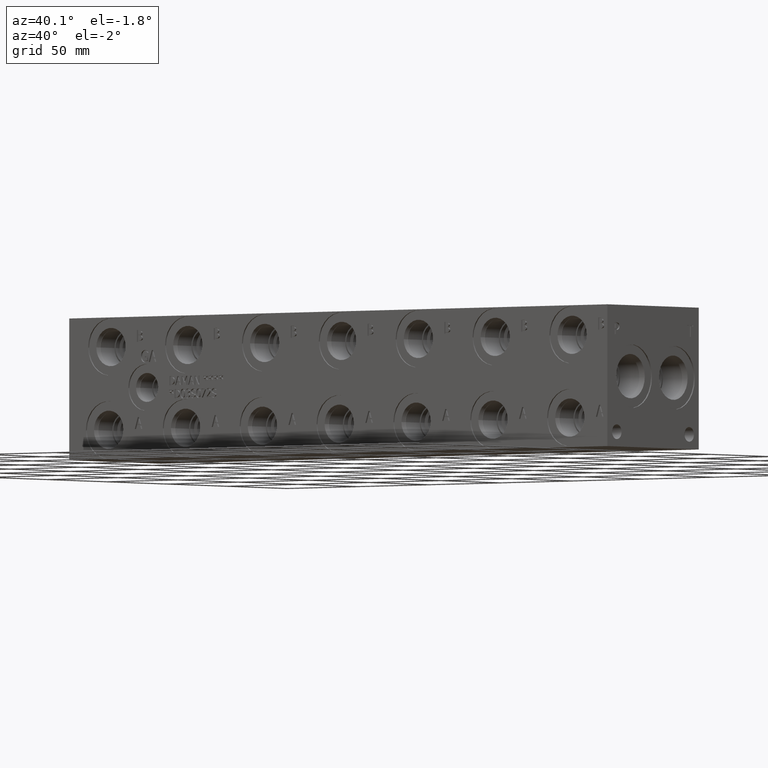
[diagram: clean part render]
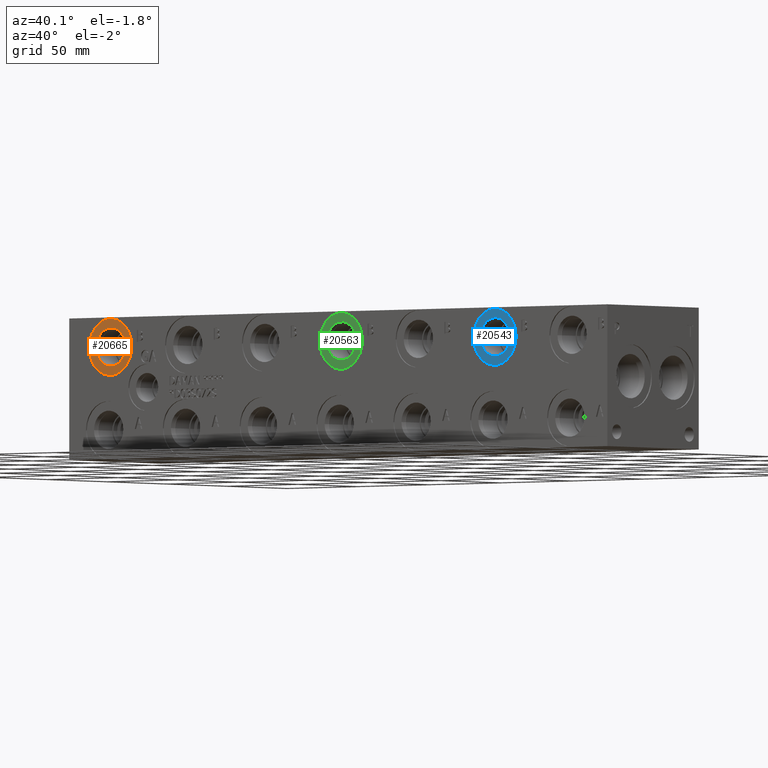
[diagram: same view with three faces highlighted in distinct colors, each labeled with its STEP entity id]
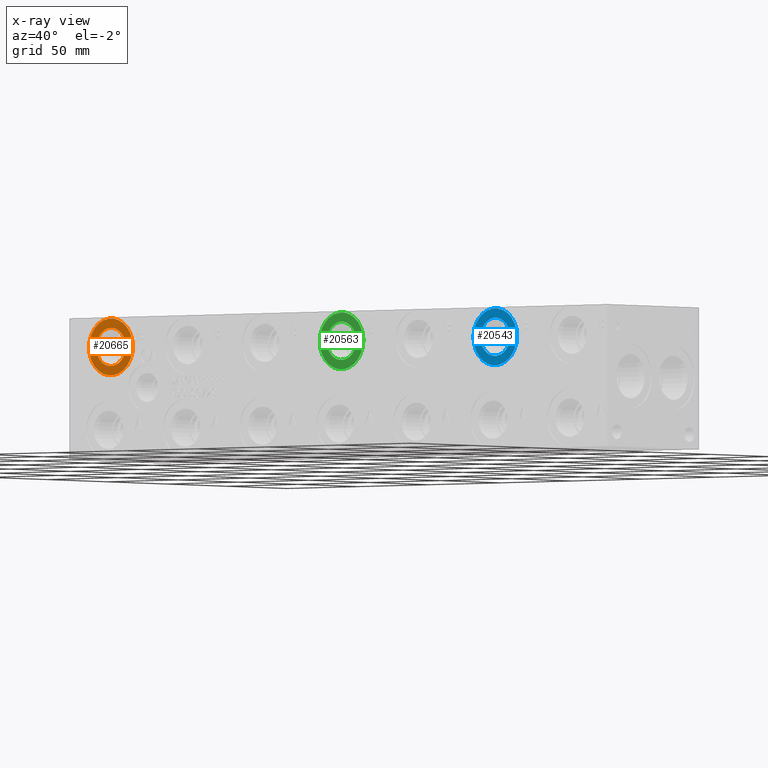
[diagram: x-ray of the same camera — body ghosted, the three highlighted faces saturated]
A machine part, auxiliary view with three faces highlighted in distinct colors.
The next image is the same camera in x-ray (body ghosted, the three faces saturated) — at least one of them is partly hidden behind the body in this view.
Their STEP definitions:

[orange] entity #20665 — the highlighted planar face has unit normal (0, 1, 0).
#943=CIRCLE('',#22125,15.3162);
#944=CIRCLE('',#22126,15.3162);
#945=CIRCLE('',#22128,10.2997);
#946=CIRCLE('',#22129,10.2997);
#1229=FACE_BOUND('',#4220,.T.);
#2986=FACE_OUTER_BOUND('',#4219,.T.);
#4219=EDGE_LOOP('',(#17901,#17902));
#4220=EDGE_LOOP('',(#17903,#17904));
#9687=VERTEX_POINT('',#35775);
#9688=VERTEX_POINT('',#35777);
#9689=VERTEX_POINT('',#35781);
#9690=VERTEX_POINT('',#35782);
#12509=EDGE_CURVE('',#9687,#9688,#943,.T.);
#12510=EDGE_CURVE('',#9688,#9687,#944,.T.);
#12511=EDGE_CURVE('',#9689,#9690,#945,.T.);
#12512=EDGE_CURVE('',#9690,#9689,#946,.T.);
#17901=ORIENTED_EDGE('',*,*,#12510,.F.);
#17902=ORIENTED_EDGE('',*,*,#12509,.F.);
#17903=ORIENTED_EDGE('',*,*,#12511,.T.);
#17904=ORIENTED_EDGE('',*,*,#12512,.T.);
#19013=PLANE('',#22127);
#20665=ADVANCED_FACE('',(#2986,#1229),#19013,.F.);
#22125=AXIS2_PLACEMENT_3D('',#35778,#26680,#26681);
#22126=AXIS2_PLACEMENT_3D('',#35779,#26682,#26683);
#22127=AXIS2_PLACEMENT_3D('',#35780,#26684,#26685);
#22128=AXIS2_PLACEMENT_3D('',#35783,#26686,#26687);
#22129=AXIS2_PLACEMENT_3D('',#35784,#26688,#26689);
#26680=DIRECTION('center_axis',(0.,1.,0.));
#26681=DIRECTION('ref_axis',(1.,0.,0.));
#26682=DIRECTION('center_axis',(0.,1.,0.));
#26683=DIRECTION('ref_axis',(1.,0.,0.));
#26684=DIRECTION('center_axis',(0.,1.,0.));
#26685=DIRECTION('ref_axis',(0.,0.,1.));
#26686=DIRECTION('center_axis',(0.,1.,0.));
#26687=DIRECTION('ref_axis',(1.,0.,0.));
#26688=DIRECTION('center_axis',(0.,1.,0.));
#26689=DIRECTION('ref_axis',(1.,0.,0.));
#35775=CARTESIAN_POINT('',(13.2588,0.7874,60.325));
#35777=CARTESIAN_POINT('',(43.8912,0.7874,60.325));
#35778=CARTESIAN_POINT('Origin',(28.575,0.7874,60.325));
#35779=CARTESIAN_POINT('Origin',(28.575,0.7874,60.325));
#35780=CARTESIAN_POINT('Origin',(38.8747,0.7874,60.325));
#35781=CARTESIAN_POINT('',(38.8747,0.7874,60.325));
#35782=CARTESIAN_POINT('',(18.2753,0.787399999999999,60.325));
#35783=CARTESIAN_POINT('Origin',(28.575,0.7874,60.325));
#35784=CARTESIAN_POINT('Origin',(28.575,0.7874,60.325));

[blue] entity #20543 — the highlighted planar face has unit normal (0, 1, 0).
#757=CIRCLE('',#21817,15.3162);
#758=CIRCLE('',#21818,15.3162);
#759=CIRCLE('',#21820,10.2997);
#760=CIRCLE('',#21821,10.2997);
#1207=FACE_BOUND('',#4076,.T.);
#2864=FACE_OUTER_BOUND('',#4075,.T.);
#4075=EDGE_LOOP('',(#17307,#17308));
#4076=EDGE_LOOP('',(#17309,#17310));
#9489=VERTEX_POINT('',#35169);
#9490=VERTEX_POINT('',#35171);
#9491=VERTEX_POINT('',#35175);
#9492=VERTEX_POINT('',#35176);
#12223=EDGE_CURVE('',#9489,#9490,#757,.T.);
#12224=EDGE_CURVE('',#9490,#9489,#758,.T.);
#12225=EDGE_CURVE('',#9491,#9492,#759,.T.);
#12226=EDGE_CURVE('',#9492,#9491,#760,.T.);
#17307=ORIENTED_EDGE('',*,*,#12224,.F.);
#17308=ORIENTED_EDGE('',*,*,#12223,.F.);
#17309=ORIENTED_EDGE('',*,*,#12225,.T.);
#17310=ORIENTED_EDGE('',*,*,#12226,.T.);
#18991=PLANE('',#21819);
#20543=ADVANCED_FACE('',(#2864,#1207),#18991,.F.);
#21817=AXIS2_PLACEMENT_3D('',#35172,#25964,#25965);
#21818=AXIS2_PLACEMENT_3D('',#35173,#25966,#25967);
#21819=AXIS2_PLACEMENT_3D('',#35174,#25968,#25969);
#21820=AXIS2_PLACEMENT_3D('',#35177,#25970,#25971);
#21821=AXIS2_PLACEMENT_3D('',#35178,#25972,#25973);
#25964=DIRECTION('center_axis',(0.,1.,0.));
#25965=DIRECTION('ref_axis',(1.,0.,0.));
#25966=DIRECTION('center_axis',(0.,1.,0.));
#25967=DIRECTION('ref_axis',(1.,0.,0.));
#25968=DIRECTION('center_axis',(0.,1.,0.));
#25969=DIRECTION('ref_axis',(0.,0.,1.));
#25970=DIRECTION('center_axis',(0.,1.,0.));
#25971=DIRECTION('ref_axis',(1.,0.,0.));
#25972=DIRECTION('center_axis',(0.,1.,0.));
#25973=DIRECTION('ref_axis',(1.,0.,0.));
#35169=CARTESIAN_POINT('',(283.1338,0.7874,60.325));
#35171=CARTESIAN_POINT('',(313.7662,0.7874,60.325));
#35172=CARTESIAN_POINT('Origin',(298.45,0.7874,60.325));
#35173=CARTESIAN_POINT('Origin',(298.45,0.7874,60.325));
#35174=CARTESIAN_POINT('Origin',(308.7497,0.7874,60.325));
#35175=CARTESIAN_POINT('',(308.7497,0.7874,60.325));
#35176=CARTESIAN_POINT('',(288.1503,0.7874,60.325));
#35177=CARTESIAN_POINT('Origin',(298.45,0.7874,60.325));
#35178=CARTESIAN_POINT('Origin',(298.45,0.7874,60.325));

[green] entity #20563 — the highlighted planar face has unit normal (0, 1, 0).
#793=CIRCLE('',#21873,15.3162);
#794=CIRCLE('',#21874,15.3162);
#795=CIRCLE('',#21876,10.2997);
#796=CIRCLE('',#21877,10.2997);
#1211=FACE_BOUND('',#4100,.T.);
#2884=FACE_OUTER_BOUND('',#4099,.T.);
#4099=EDGE_LOOP('',(#17415,#17416));
#4100=EDGE_LOOP('',(#17417,#17418));
#9525=VERTEX_POINT('',#35277);
#9526=VERTEX_POINT('',#35279);
#9527=VERTEX_POINT('',#35283);
#9528=VERTEX_POINT('',#35284);
#12275=EDGE_CURVE('',#9525,#9526,#793,.T.);
#12276=EDGE_CURVE('',#9526,#9525,#794,.T.);
#12277=EDGE_CURVE('',#9527,#9528,#795,.T.);
#12278=EDGE_CURVE('',#9528,#9527,#796,.T.);
#17415=ORIENTED_EDGE('',*,*,#12276,.F.);
#17416=ORIENTED_EDGE('',*,*,#12275,.F.);
#17417=ORIENTED_EDGE('',*,*,#12277,.T.);
#17418=ORIENTED_EDGE('',*,*,#12278,.T.);
#18995=PLANE('',#21875);
#20563=ADVANCED_FACE('',(#2884,#1211),#18995,.F.);
#21873=AXIS2_PLACEMENT_3D('',#35280,#26092,#26093);
#21874=AXIS2_PLACEMENT_3D('',#35281,#26094,#26095);
#21875=AXIS2_PLACEMENT_3D('',#35282,#26096,#26097);
#21876=AXIS2_PLACEMENT_3D('',#35285,#26098,#26099);
#21877=AXIS2_PLACEMENT_3D('',#35286,#26100,#26101);
#26092=DIRECTION('center_axis',(0.,1.,0.));
#26093=DIRECTION('ref_axis',(1.,0.,0.));
#26094=DIRECTION('center_axis',(0.,1.,0.));
#26095=DIRECTION('ref_axis',(1.,0.,0.));
#26096=DIRECTION('center_axis',(0.,1.,0.));
#26097=DIRECTION('ref_axis',(0.,0.,1.));
#26098=DIRECTION('center_axis',(0.,1.,0.));
#26099=DIRECTION('ref_axis',(1.,0.,0.));
#26100=DIRECTION('center_axis',(0.,1.,0.));
#26101=DIRECTION('ref_axis',(1.,0.,0.));
#35277=CARTESIAN_POINT('',(175.1838,0.7874,60.325));
#35279=CARTESIAN_POINT('',(205.8162,0.7874,60.325));
#35280=CARTESIAN_POINT('Origin',(190.5,0.7874,60.325));
#35281=CARTESIAN_POINT('Origin',(190.5,0.7874,60.325));
#35282=CARTESIAN_POINT('Origin',(200.7997,0.7874,60.325));
#35283=CARTESIAN_POINT('',(200.7997,0.7874,60.325));
#35284=CARTESIAN_POINT('',(180.2003,0.7874,60.325));
#35285=CARTESIAN_POINT('Origin',(190.5,0.7874,60.325));
#35286=CARTESIAN_POINT('Origin',(190.5,0.7874,60.325));